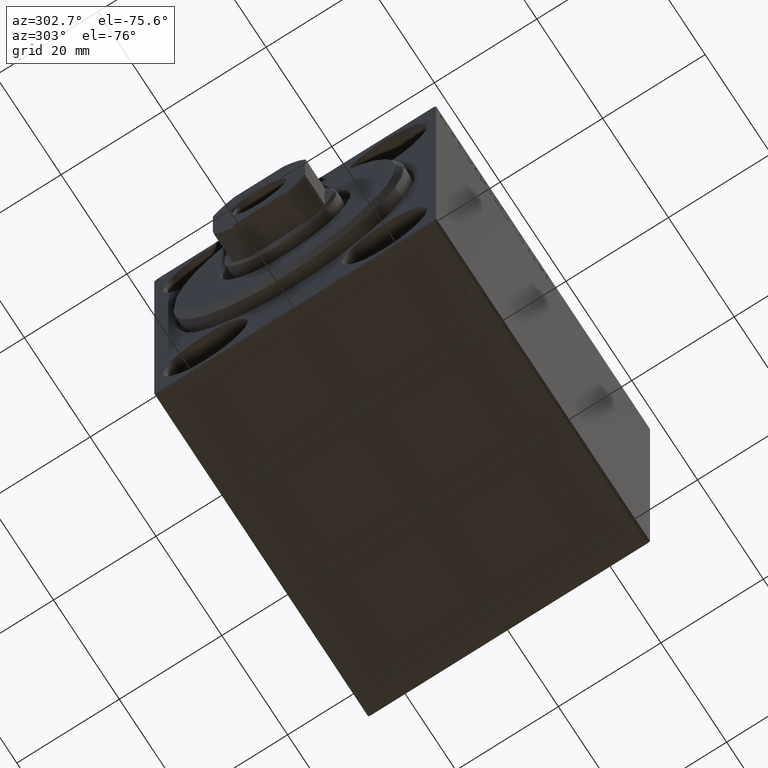
[diagram: clean part render]
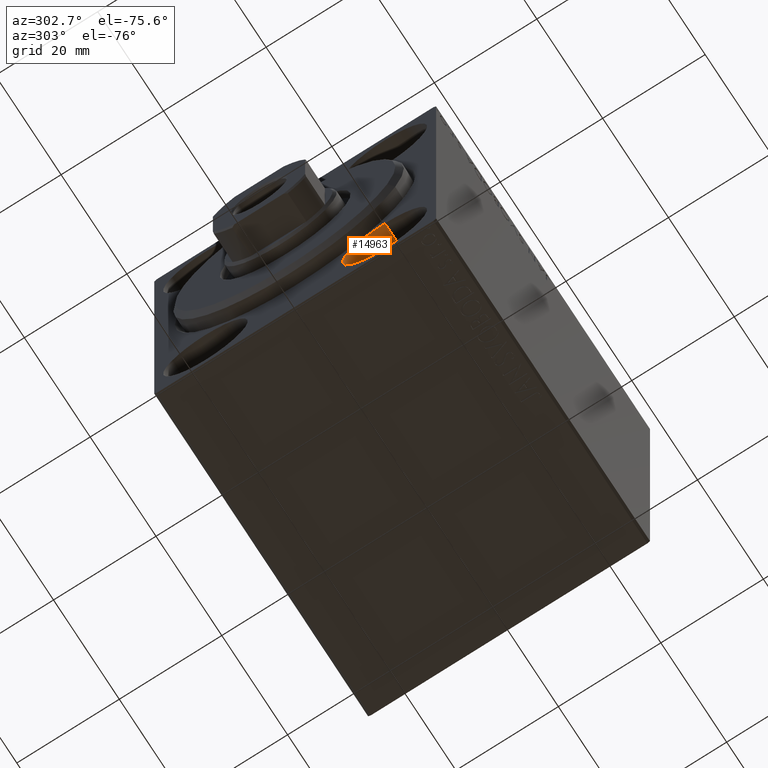
[diagram: same view with one face highlighted and labeled with its STEP entity id]
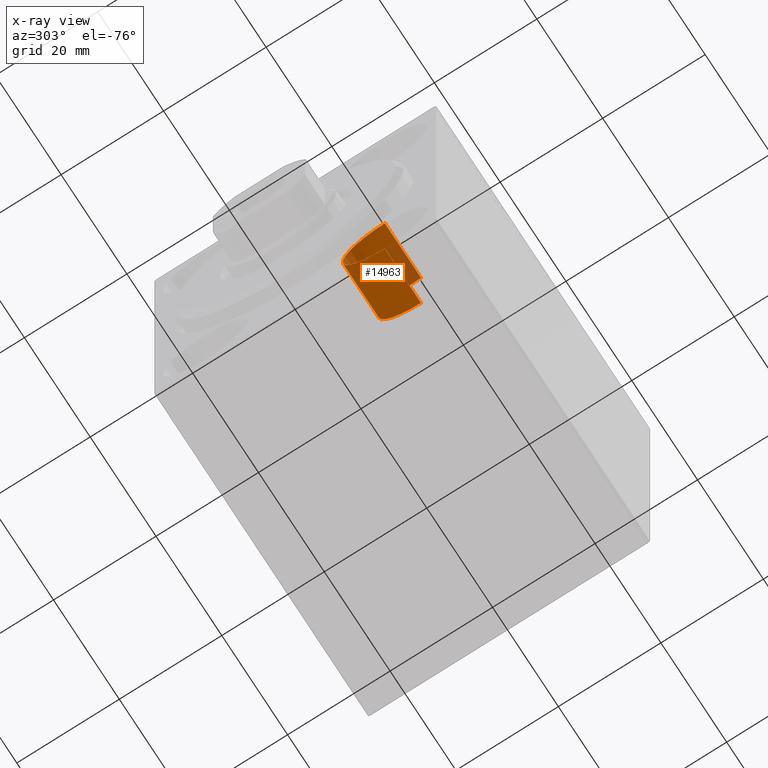
[diagram: x-ray of the same camera — body ghosted, the highlighted face saturated]
A machine part, auxiliary view. The second image highlights one B-rep face of the part: STEP entity #14963.
The next image is the same camera in x-ray: the body ghosted, the highlighted face saturated — about 14% of this face is hidden behind the body in this view.
In plain terms, the highlighted cylindrical surface (partial cylindrical patch) has radius 8.25 mm, axis along (-1, -0, -0).
Its self-contained STEP definition (entity closure, byte-faithful):
#2 = CYLINDRICAL_SURFACE ( 'NONE', #38528, 8.250000000000000000 ) ;
#478 = EDGE_CURVE ( 'NONE', #21505, #33055, #30573, .T. ) ;
#955 = LINE ( 'NONE', #4493, #16605 ) ;
#1905 = CARTESIAN_POINT ( 'NONE',  ( 11.00000000000000000, -17.50000000000000355, -19.25000000000000355 ) ) ;
#2211 = ORIENTED_EDGE ( 'NONE', *, *, #30803, .T. ) ;
#2582 = DIRECTION ( 'NONE',  ( 0.000000000000000000, 0.000000000000000000, 1.000000000000000000 ) ) ;
#4493 = CARTESIAN_POINT ( 'NONE',  ( 11.00000000000000000, -17.50000000000000355, -35.75000000000000711 ) ) ;
#4727 = VERTEX_POINT ( 'NONE', #35718 ) ;
#6840 = FACE_OUTER_BOUND ( 'NONE', #38688, .T. ) ;
#7193 = DIRECTION ( 'NONE',  ( -1.000000000000000000, 0.000000000000000000, 0.000000000000000000 ) ) ;
#8453 = CIRCLE ( 'NONE', #36590, 8.250000000000000000 ) ;
#10263 = CARTESIAN_POINT ( 'NONE',  ( 0.000000000000000000, -17.50000000000000355, -35.75000000000000711 ) ) ;
#10365 = DIRECTION ( 'NONE',  ( 0.000000000000000000, 0.000000000000000000, 1.000000000000000000 ) ) ;
#11079 = CARTESIAN_POINT ( 'NONE',  ( 11.00000000000000000, -17.50000000000000355, -19.25000000000000355 ) ) ;
#12692 = LINE ( 'NONE', #1905, #22350 ) ;
#14963 = ADVANCED_FACE ( 'NONE', ( #6840 ), #2, .F. ) ;
#14964 = ORIENTED_EDGE ( 'NONE', *, *, #18496, .F. ) ;
#16244 = DIRECTION ( 'NONE',  ( -1.000000000000000000, 0.000000000000000000, 0.000000000000000000 ) ) ;
#16605 = VECTOR ( 'NONE', #37752, 1000.000000000000000 ) ;
#16969 = ORIENTED_EDGE ( 'NONE', *, *, #478, .T. ) ;
#18119 = ORIENTED_EDGE ( 'NONE', *, *, #27307, .F. ) ;
#18496 = EDGE_CURVE ( 'NONE', #34935, #4727, #8453, .T. ) ;
#20209 = CARTESIAN_POINT ( 'NONE',  ( 0.000000000000000000, -17.50000000000000355, -27.50000000000000355 ) ) ;
#20647 = DIRECTION ( 'NONE',  ( 0.000000000000000000, 0.000000000000000000, 1.000000000000000000 ) ) ;
#21505 = VERTEX_POINT ( 'NONE', #36346 ) ;
#22350 = VECTOR ( 'NONE', #36042, 1000.000000000000000 ) ;
#26247 = CARTESIAN_POINT ( 'NONE',  ( 11.00000000000000000, -17.50000000000000355, -27.50000000000000355 ) ) ;
#27307 = EDGE_CURVE ( 'NONE', #4727, #33055, #955, .T. ) ;
#29157 = AXIS2_PLACEMENT_3D ( 'NONE', #20209, #7193, #20647 ) ;
#30573 = CIRCLE ( 'NONE', #29157, 8.250000000000000000 ) ;
#30803 = EDGE_CURVE ( 'NONE', #34935, #21505, #12692, .T. ) ;
#32756 = CARTESIAN_POINT ( 'NONE',  ( 11.00000000000000000, -17.50000000000000355, -27.50000000000000355 ) ) ;
#33055 = VERTEX_POINT ( 'NONE', #10263 ) ;
#34935 = VERTEX_POINT ( 'NONE', #11079 ) ;
#35718 = CARTESIAN_POINT ( 'NONE',  ( 11.00000000000000000, -17.50000000000000355, -35.75000000000000711 ) ) ;
#36042 = DIRECTION ( 'NONE',  ( -1.000000000000000000, -0.000000000000000000, -0.000000000000000000 ) ) ;
#36346 = CARTESIAN_POINT ( 'NONE',  ( 0.000000000000000000, -17.50000000000000355, -19.25000000000000355 ) ) ;
#36590 = AXIS2_PLACEMENT_3D ( 'NONE', #32756, #16244, #2582 ) ;
#37752 = DIRECTION ( 'NONE',  ( -1.000000000000000000, -0.000000000000000000, -0.000000000000000000 ) ) ;
#38528 = AXIS2_PLACEMENT_3D ( 'NONE', #26247, #39882, #10365 ) ;
#38688 = EDGE_LOOP ( 'NONE', ( #18119, #14964, #2211, #16969 ) ) ;
#39882 = DIRECTION ( 'NONE',  ( -1.000000000000000000, -0.000000000000000000, -0.000000000000000000 ) ) ;